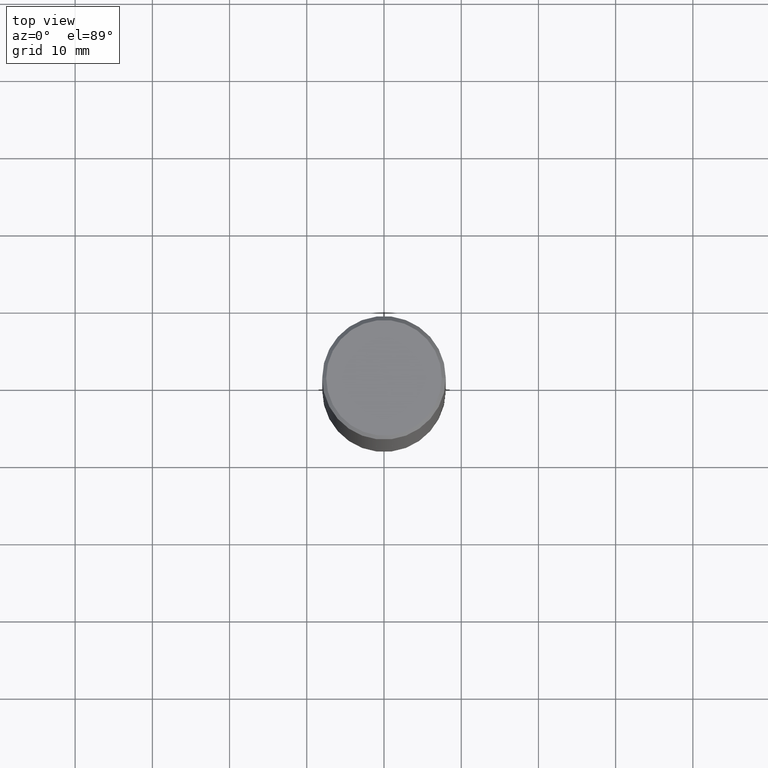
[diagram: clean part render]
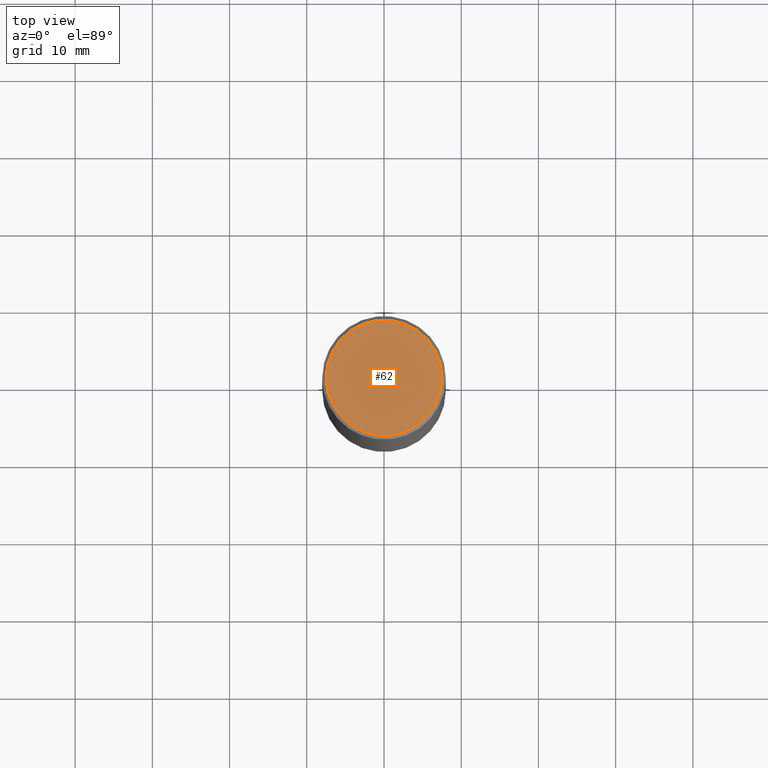
[diagram: same view with one face highlighted and labeled with its STEP entity id]
A machine part, top view. The second image highlights one B-rep face of the part: STEP entity #62.
In plain terms, the highlighted planar face has unit normal (0, -0, -1).
Its self-contained STEP definition (entity closure, byte-faithful):
#27 = DIRECTION ( 'NONE',  ( -1.000000000000000000, 6.982962677686265922E-15, -4.876176775795935793E-29 ) ) ;
#40 = CIRCLE ( 'NONE', #265, 0.2949499999999997124 ) ;
#53 = PLANE ( 'NONE',  #262 ) ;
#62 = ADVANCED_FACE ( 'NONE', ( #306 ), #53, .F. ) ;
#91 = CIRCLE ( 'NONE', #298, 0.2949499999999997124 ) ;
#105 = VERTEX_POINT ( 'NONE', #242 ) ;
#125 = ORIENTED_EDGE ( 'NONE', *, *, #250, .T. ) ;
#147 = DIRECTION ( 'NONE',  ( -2.445468806185136597E-29, 3.491481338843145583E-15, 1.000000000000000000 ) ) ;
#162 = VERTEX_POINT ( 'NONE', #312 ) ;
#202 = CARTESIAN_POINT ( 'NONE',  ( -2.087702828670439639E-46, 2.980686340760894400E-32, 8.537024980200822558E-18 ) ) ;
#207 = EDGE_LOOP ( 'NONE', ( #125, #295 ) ) ;
#233 = DIRECTION ( 'NONE',  ( 1.000000000000000000, -6.982962677686267499E-15, 4.876053491004739391E-29 ) ) ;
#242 = CARTESIAN_POINT ( 'NONE',  ( -0.2949499999999997124, 2.094539655171993740E-15, 8.537024980186296424E-18 ) ) ;
#250 = EDGE_CURVE ( 'NONE', #105, #162, #91, .T. ) ;
#262 = AXIS2_PLACEMENT_3D ( 'NONE', #363, #302, #27 ) ;
#265 = AXIS2_PLACEMENT_3D ( 'NONE', #355, #147, #233 ) ;
#283 = DIRECTION ( 'NONE',  ( 1.000000000000000000, -6.982962677686267499E-15, 4.876053491004739391E-29 ) ) ;
#295 = ORIENTED_EDGE ( 'NONE', *, *, #332, .T. ) ;
#298 = AXIS2_PLACEMENT_3D ( 'NONE', #202, #342, #283 ) ;
#302 = DIRECTION ( 'NONE',  ( 2.438088387897960049E-29, -3.491481338843145188E-15, -1.000000000000000000 ) ) ;
#306 = FACE_OUTER_BOUND ( 'NONE', #207, .T. ) ;
#312 = CARTESIAN_POINT ( 'NONE',  ( 0.2949499999999997124, -2.127023677808858103E-15, 8.537024980215462707E-18 ) ) ;
#332 = EDGE_CURVE ( 'NONE', #162, #105, #40, .T. ) ;
#342 = DIRECTION ( 'NONE',  ( -2.445468806185136597E-29, 3.491481338843145583E-15, 1.000000000000000000 ) ) ;
#355 = CARTESIAN_POINT ( 'NONE',  ( -2.087702828670439639E-46, 2.980686340760894400E-32, 8.537024980200822558E-18 ) ) ;
#363 = CARTESIAN_POINT ( 'NONE',  ( 2.059624841783562091E-15, 0.2949499999999997124, -1.025543908401684366E-15 ) ) ;